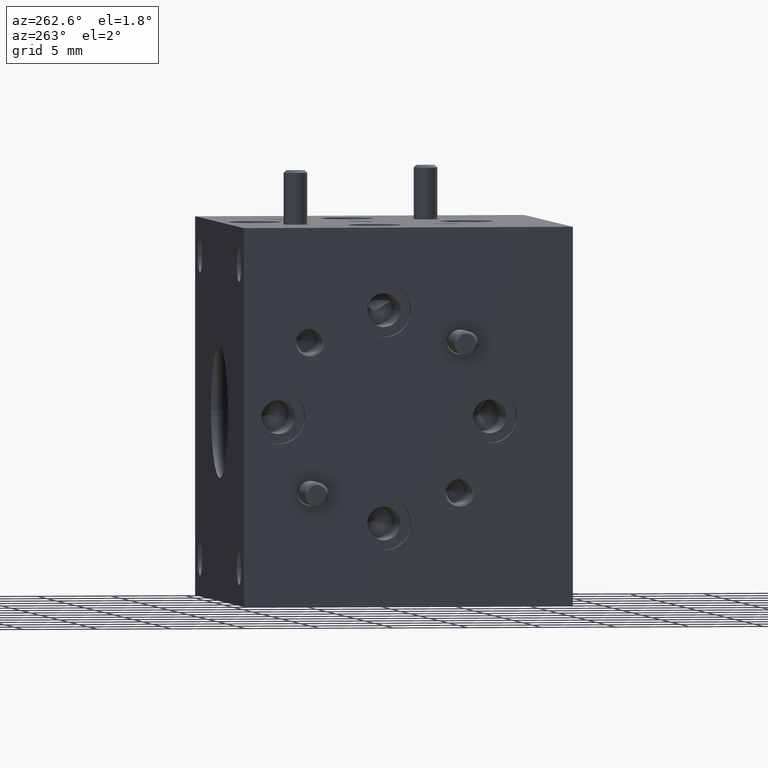
[diagram: clean part render]
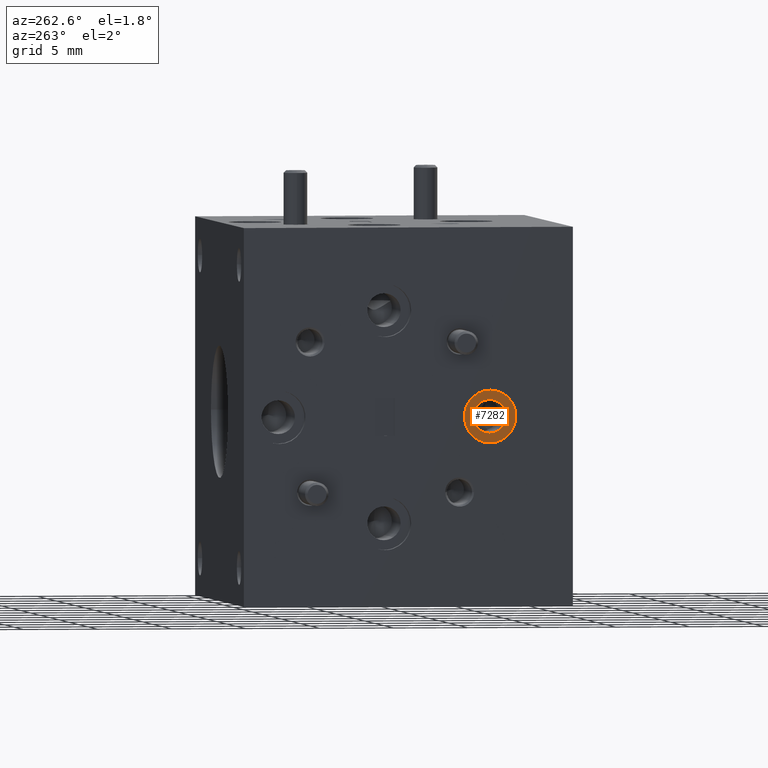
[diagram: same view with one face highlighted and labeled with its STEP entity id]
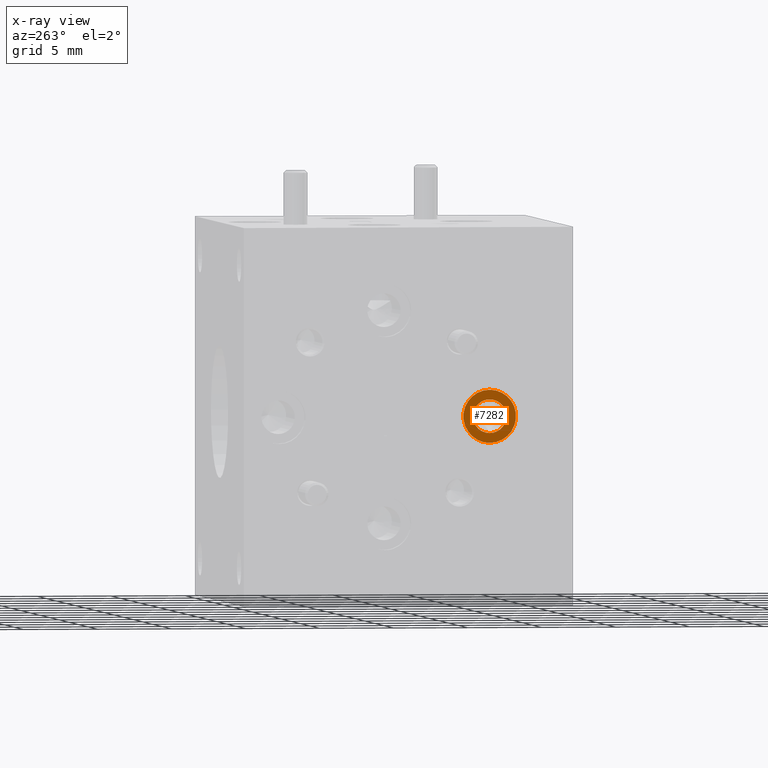
[diagram: x-ray of the same camera — body ghosted, the highlighted face saturated]
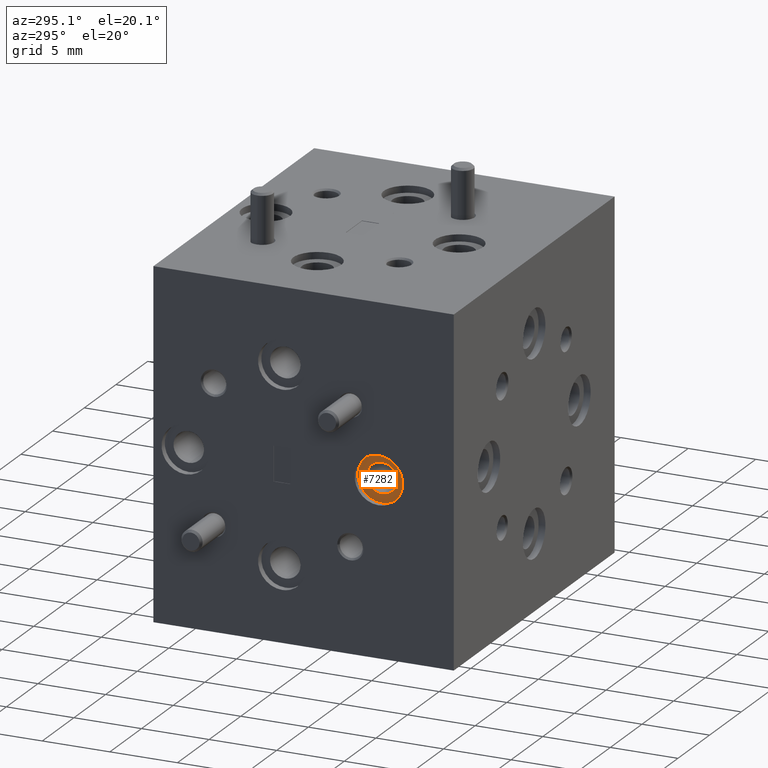
[diagram: same view with one face highlighted and labeled with its STEP entity id]
A machine part, auxiliary view. The second image highlights one B-rep face of the part: STEP entity #7282.
The next image is the same camera in x-ray: the body ghosted, the highlighted face saturated — about 0% of this face is hidden behind the body in this view.
A second angle (auxiliary view) of the same face is appended — the face is thin or edge-on in the first view.
In plain terms, the highlighted planar face has unit normal (-1, 0, 0).
Its self-contained STEP definition (entity closure, byte-faithful):
#29 = ORIENTED_EDGE ( 'NONE', *, *, #9742, .T. ) ;
#443 = FACE_BOUND ( 'NONE', #2415, .T. ) ;
#597 = CARTESIAN_POINT ( 'NONE',  ( -0.4799999999999999800, 0.2187500000000000600, -0.04449999999999949800 ) ) ;
#605 = CARTESIAN_POINT ( 'NONE',  ( -0.4799999999999999300, 0.2187500000000000000, 0.07000000000000011800 ) ) ;
#754 = CIRCLE ( 'NONE', #927, 0.07000000000000000700 ) ;
#927 = AXIS2_PLACEMENT_3D ( 'NONE', #3269, #2582, #4103 ) ;
#1102 = ORIENTED_EDGE ( 'NONE', *, *, #8768, .T. ) ;
#1595 = DIRECTION ( 'NONE',  ( 1.000000000000000000, -0.0000000000000000000, -4.996003610813203400E-016 ) ) ;
#1733 = CARTESIAN_POINT ( 'NONE',  ( -0.4799999999999999800, 0.2187500000000000000, 1.203160301097218300E-016 ) ) ;
#2006 = DIRECTION ( 'NONE',  ( -1.000000000000000000, 7.679050901318821200E-018, 4.996003610813203400E-016 ) ) ;
#2371 = DIRECTION ( 'NONE',  ( 0.0000000000000000000, 0.0000000000000000000, 1.000000000000000000 ) ) ;
#2415 = EDGE_LOOP ( 'NONE', ( #6875, #1102 ) ) ;
#2582 = DIRECTION ( 'NONE',  ( -1.000000000000000000, 7.679050901318821200E-018, 4.996003610813203400E-016 ) ) ;
#2677 = AXIS2_PLACEMENT_3D ( 'NONE', #6634, #2006, #2777 ) ;
#2777 = DIRECTION ( 'NONE',  ( 9.756599977372368600E-016, 0.0000000000000000000, 1.000000000000000000 ) ) ;
#2831 = EDGE_LOOP ( 'NONE', ( #3869, #29 ) ) ;
#3228 = DIRECTION ( 'NONE',  ( 4.996003610813203400E-016, 0.0000000000000000000, 1.000000000000000000 ) ) ;
#3269 = CARTESIAN_POINT ( 'NONE',  ( -0.4799999999999999800, 0.2187500000000000000, 1.203160301097218300E-016 ) ) ;
#3330 = CARTESIAN_POINT ( 'NONE',  ( -0.4799999999999999800, 0.2187500000000000600, 0.04449999999999997700 ) ) ;
#3869 = ORIENTED_EDGE ( 'NONE', *, *, #3917, .T. ) ;
#3917 = EDGE_CURVE ( 'NONE', #7613, #9334, #754, .T. ) ;
#3963 = AXIS2_PLACEMENT_3D ( 'NONE', #8665, #7874, #6330 ) ;
#4062 = FACE_OUTER_BOUND ( 'NONE', #2831, .T. ) ;
#4103 = DIRECTION ( 'NONE',  ( 9.756599977372368600E-016, 0.0000000000000000000, 1.000000000000000000 ) ) ;
#4674 = CARTESIAN_POINT ( 'NONE',  ( -0.4800000000000000900, 0.2187500000000000000, -0.06999999999999988200 ) ) ;
#6298 = PLANE ( 'NONE',  #8439 ) ;
#6330 = DIRECTION ( 'NONE',  ( 0.0000000000000000000, 0.0000000000000000000, 1.000000000000000000 ) ) ;
#6634 = CARTESIAN_POINT ( 'NONE',  ( -0.4799999999999999800, 0.2187500000000000000, 1.203160301097218300E-016 ) ) ;
#6875 = ORIENTED_EDGE ( 'NONE', *, *, #9405, .T. ) ;
#7282 = ADVANCED_FACE ( 'NONE', ( #443, #4062 ), #6298, .T. ) ;
#7443 = CIRCLE ( 'NONE', #7884, 0.04449999999999974100 ) ;
#7463 = CIRCLE ( 'NONE', #3963, 0.04449999999999974100 ) ;
#7613 = VERTEX_POINT ( 'NONE', #605 ) ;
#7872 = DIRECTION ( 'NONE',  ( -1.000000000000000000, 7.679050901318821200E-018, 4.996003610813203400E-016 ) ) ;
#7874 = DIRECTION ( 'NONE',  ( 1.000000000000000000, -0.0000000000000000000, -4.996003610813203400E-016 ) ) ;
#7884 = AXIS2_PLACEMENT_3D ( 'NONE', #9244, #1595, #2371 ) ;
#8439 = AXIS2_PLACEMENT_3D ( 'NONE', #1733, #7872, #3228 ) ;
#8652 = CIRCLE ( 'NONE', #2677, 0.07000000000000000700 ) ;
#8665 = CARTESIAN_POINT ( 'NONE',  ( -0.4799999999999999800, 0.2187500000000000600, 2.398343798325333000E-016 ) ) ;
#8768 = EDGE_CURVE ( 'NONE', #9316, #10047, #7463, .T. ) ;
#9244 = CARTESIAN_POINT ( 'NONE',  ( -0.4799999999999999800, 0.2187500000000000600, 2.398343798325333000E-016 ) ) ;
#9316 = VERTEX_POINT ( 'NONE', #597 ) ;
#9334 = VERTEX_POINT ( 'NONE', #4674 ) ;
#9405 = EDGE_CURVE ( 'NONE', #10047, #9316, #7443, .T. ) ;
#9742 = EDGE_CURVE ( 'NONE', #9334, #7613, #8652, .T. ) ;
#10047 = VERTEX_POINT ( 'NONE', #3330 ) ;